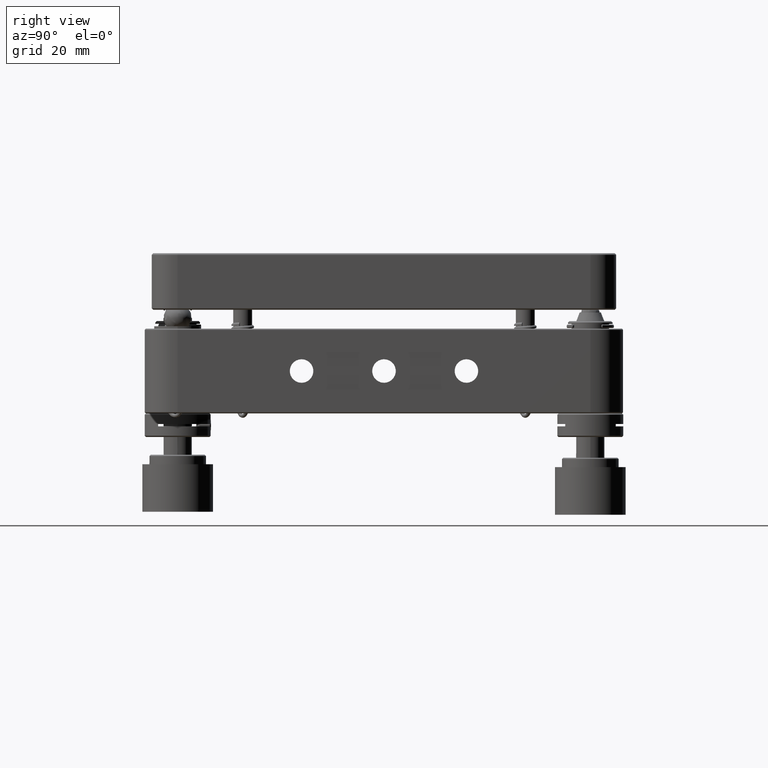
[diagram: clean part render]
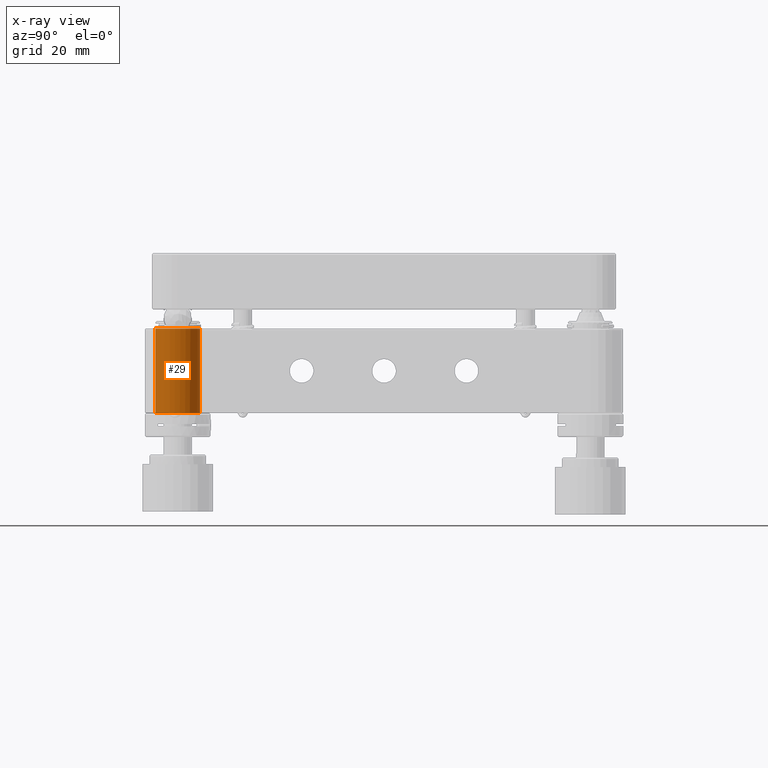
[diagram: x-ray — body ghosted, one internal face saturated and labeled with its STEP entity id]
A machine part, right view, then the same camera in x-ray: the body is ghosted and one INTERNAL B-rep face — a face not visible from any outside direction — is saturated and labeled: STEP entity #29.
In plain terms, the highlighted cylindrical surface (bore or boss wall) has radius 4.75 mm, axis along (0, -0, 1).
Its self-contained STEP definition (entity closure, byte-faithful):
#29 = ADVANCED_FACE ( 'NONE', ( #21228, #18834 ), #7058, .T. ) ;
#108 = DIRECTION ( 'NONE',  ( 2.391543916884339019E-17, -1.201068257676468558E-16, 1.000000000000000000 ) ) ;
#525 = DIRECTION ( 'NONE',  ( 0.000000000000000000, -1.000000000000000000, 0.000000000000000000 ) ) ;
#2206 = AXIS2_PLACEMENT_3D ( 'NONE', #4531, #18964, #525 ) ;
#2248 = VERTEX_POINT ( 'NONE', #18549 ) ;
#2377 = VERTEX_POINT ( 'NONE', #10525 ) ;
#4531 = CARTESIAN_POINT ( 'NONE',  ( -43.79999999999999005, -43.80000000000004690, -33.79898987322347637 ) ) ;
#5339 = AXIS2_PLACEMENT_3D ( 'NONE', #5571, #17579, #13454 ) ;
#5571 = CARTESIAN_POINT ( 'NONE',  ( -43.79999999999999005, -43.80000000000005400, 8.999999999999849010 ) ) ;
#6364 = EDGE_LOOP ( 'NONE', ( #10346 ) ) ;
#7058 = CYLINDRICAL_SURFACE ( 'NONE', #2206, 4.750000000000004441 ) ;
#8737 = CIRCLE ( 'NONE', #5339, 4.750000000000004441 ) ;
#9580 = ORIENTED_EDGE ( 'NONE', *, *, #25816, .T. ) ;
#10133 = CARTESIAN_POINT ( 'NONE',  ( -43.79999999999999005, -43.80000000000004690, -8.900000000000144240 ) ) ;
#10346 = ORIENTED_EDGE ( 'NONE', *, *, #26256, .T. ) ;
#10525 = CARTESIAN_POINT ( 'NONE',  ( -43.79999999999999005, -48.55000000000006111, 8.999999999999849010 ) ) ;
#13454 = DIRECTION ( 'NONE',  ( 0.000000000000000000, -1.000000000000000000, 0.000000000000000000 ) ) ;
#16388 = AXIS2_PLACEMENT_3D ( 'NONE', #10133, #108, #18278 ) ;
#17579 = DIRECTION ( 'NONE',  ( -2.391543916884339019E-17, 1.201068257676468558E-16, -1.000000000000000000 ) ) ;
#18278 = DIRECTION ( 'NONE',  ( 0.000000000000000000, -1.000000000000000000, 0.000000000000000000 ) ) ;
#18549 = CARTESIAN_POINT ( 'NONE',  ( -43.79999999999999005, -48.55000000000005400, -8.900000000000144240 ) ) ;
#18834 = FACE_OUTER_BOUND ( 'NONE', #22324, .T. ) ;
#18964 = DIRECTION ( 'NONE',  ( 2.391543916884339019E-17, -1.201068257676468558E-16, 1.000000000000000000 ) ) ;
#21228 = FACE_OUTER_BOUND ( 'NONE', #6364, .T. ) ;
#22324 = EDGE_LOOP ( 'NONE', ( #9580 ) ) ;
#24480 = CIRCLE ( 'NONE', #16388, 4.750000000000004441 ) ;
#25816 = EDGE_CURVE ( 'NONE', #2248, #2248, #24480, .T. ) ;
#26256 = EDGE_CURVE ( 'NONE', #2377, #2377, #8737, .T. ) ;